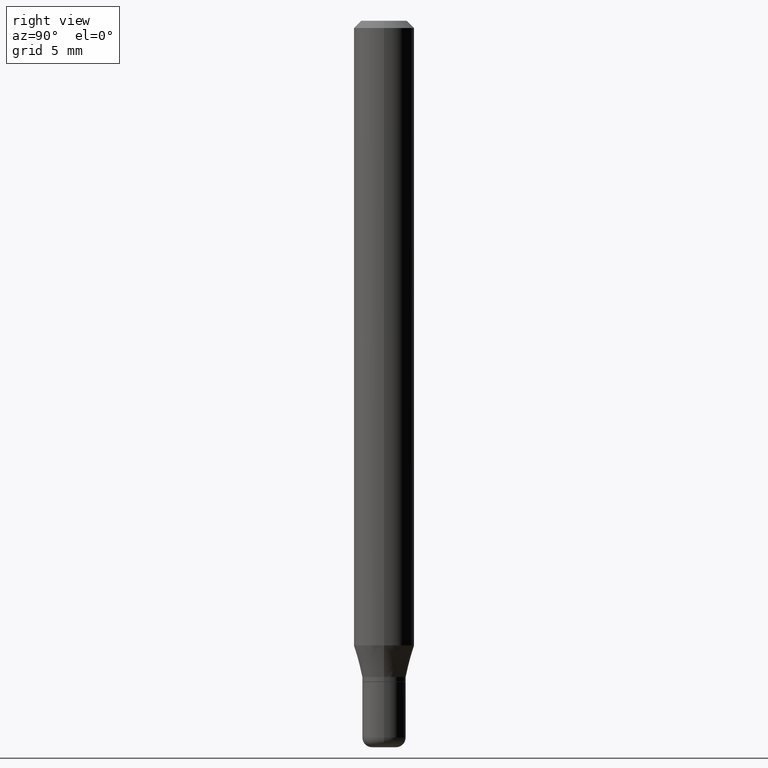
[diagram: clean part render]
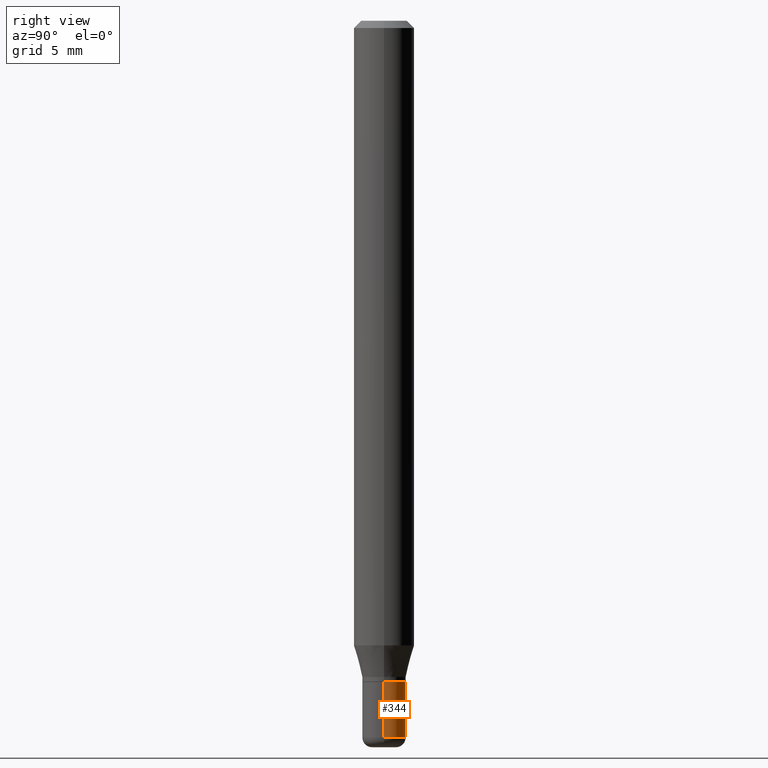
[diagram: same view with one face highlighted and labeled with its STEP entity id]
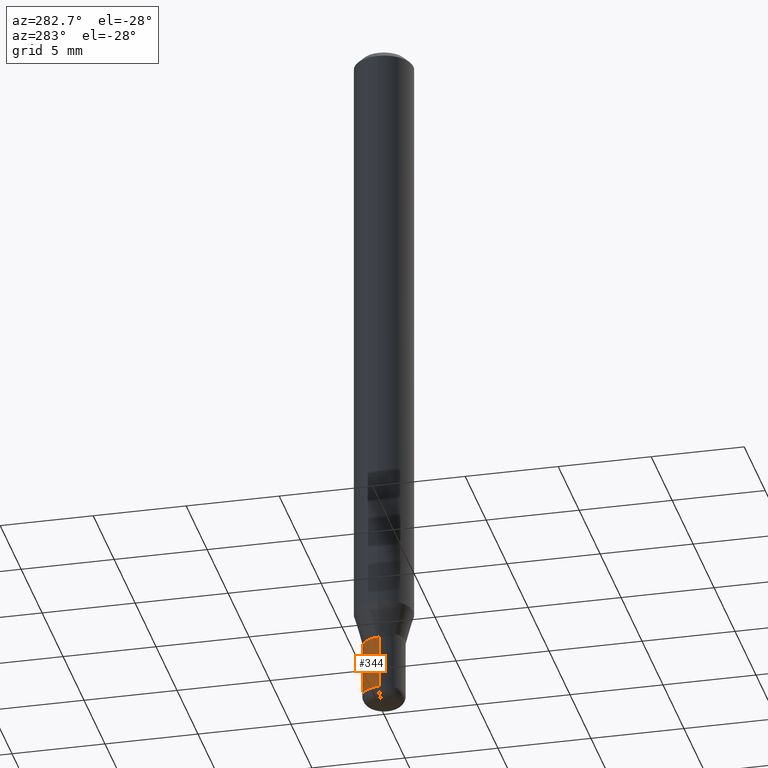
[diagram: same view with one face highlighted and labeled with its STEP entity id]
A machine part, right view. The second image highlights one B-rep face of the part: STEP entity #344.
A second angle (auxiliary view) of the same face is appended — the face is thin or edge-on in the first view.
In plain terms, the highlighted cylindrical surface (edge-blend (fillet) strip) has radius 1.143 mm, axis along (-0, 0, 1).
Its self-contained STEP definition (entity closure, byte-faithful):
#1 = DIRECTION ( 'NONE',  ( 1.000000000000000000, -6.982962677686263555E-15, 0.000000000000000000 ) ) ;
#9 = DIRECTION ( 'NONE',  ( -2.445468806185136877E-29, 3.491481338843145188E-15, 1.000000000000000000 ) ) ;
#51 = CARTESIAN_POINT ( 'NONE',  ( 0.000000000000000000, 0.000000000000000000, 0.000000000000000000 ) ) ;
#80 = ORIENTED_EDGE ( 'NONE', *, *, #348, .T. ) ;
#87 = VECTOR ( 'NONE', #9, 39.37007874015748143 ) ;
#95 = DIRECTION ( 'NONE',  ( -2.445468806185136597E-29, 3.491481338843145583E-15, 1.000000000000000000 ) ) ;
#96 = EDGE_CURVE ( 'NONE', #321, #417, #188, .T. ) ;
#140 = DIRECTION ( 'NONE',  ( -2.445468806185136597E-29, 3.491481338843145583E-15, 1.000000000000000000 ) ) ;
#142 = AXIS2_PLACEMENT_3D ( 'NONE', #408, #140, #1 ) ;
#170 = FACE_OUTER_BOUND ( 'NONE', #311, .T. ) ;
#174 = CARTESIAN_POINT ( 'NONE',  ( -0.04499999999999999833, -4.646887973412328712E-15, -1.364999999999999991 ) ) ;
#184 = CIRCLE ( 'NONE', #491, 0.04499999999999999833 ) ;
#188 = LINE ( 'NONE', #507, #486 ) ;
#214 = DIRECTION ( 'NONE',  ( -2.445468806185136597E-29, 3.491481338843145583E-15, 1.000000000000000000 ) ) ;
#242 = CARTESIAN_POINT ( 'NONE',  ( 0.04500000000000001221, -3.142333204958821302E-16, 2.194279549108171667E-30 ) ) ;
#247 = CARTESIAN_POINT ( 'NONE',  ( 0.04499999999999999833, -5.080105348016775756E-15, -1.364999999999999991 ) ) ;
#250 = DIRECTION ( 'NONE',  ( 1.000000000000000000, -6.982962677686267499E-15, 4.876176775795935793E-29 ) ) ;
#311 = EDGE_LOOP ( 'NONE', ( #80, #493, #484, #439 ) ) ;
#321 = VERTEX_POINT ( 'NONE', #430 ) ;
#323 = DIRECTION ( 'NONE',  ( 1.000000000000000000, -6.982962677686269077E-15, 0.000000000000000000 ) ) ;
#335 = EDGE_CURVE ( 'NONE', #462, #393, #433, .T. ) ;
#344 = ADVANCED_FACE ( 'NONE', ( #170 ), #399, .T. ) ;
#348 = EDGE_CURVE ( 'NONE', #462, #321, #443, .T. ) ;
#357 = AXIS2_PLACEMENT_3D ( 'NONE', #51, #95, #250 ) ;
#364 = CARTESIAN_POINT ( 'NONE',  ( 3.338064920442711836E-29, -4.765872027520893280E-15, -1.364999999999999991 ) ) ;
#372 = CARTESIAN_POINT ( 'NONE',  ( 0.04500000000000003303, -5.481625701983737354E-15, -1.479999999999999982 ) ) ;
#384 = EDGE_CURVE ( 'NONE', #393, #417, #184, .T. ) ;
#393 = VERTEX_POINT ( 'NONE', #247 ) ;
#399 = CYLINDRICAL_SURFACE ( 'NONE', #357, 0.04500000000000001221 ) ;
#408 = CARTESIAN_POINT ( 'NONE',  ( 3.619293833154002365E-29, -5.167392381487854879E-15, -1.479999999999999982 ) ) ;
#417 = VERTEX_POINT ( 'NONE', #174 ) ;
#430 = CARTESIAN_POINT ( 'NONE',  ( -0.04500000000000003303, -4.646887973412328712E-15, -1.479999999999999982 ) ) ;
#433 = LINE ( 'NONE', #242, #87 ) ;
#439 = ORIENTED_EDGE ( 'NONE', *, *, #335, .F. ) ;
#443 = CIRCLE ( 'NONE', #142, 0.04500000000000003303 ) ;
#462 = VERTEX_POINT ( 'NONE', #372 ) ;
#464 = DIRECTION ( 'NONE',  ( -2.445468806185136877E-29, 3.491481338843145188E-15, 1.000000000000000000 ) ) ;
#484 = ORIENTED_EDGE ( 'NONE', *, *, #384, .F. ) ;
#486 = VECTOR ( 'NONE', #464, 39.37007874015748143 ) ;
#491 = AXIS2_PLACEMENT_3D ( 'NONE', #364, #214, #323 ) ;
#493 = ORIENTED_EDGE ( 'NONE', *, *, #96, .T. ) ;
#507 = CARTESIAN_POINT ( 'NONE',  ( -0.04500000000000001221, 3.197442310920451704E-16, -2.213520790614708260E-30 ) ) ;